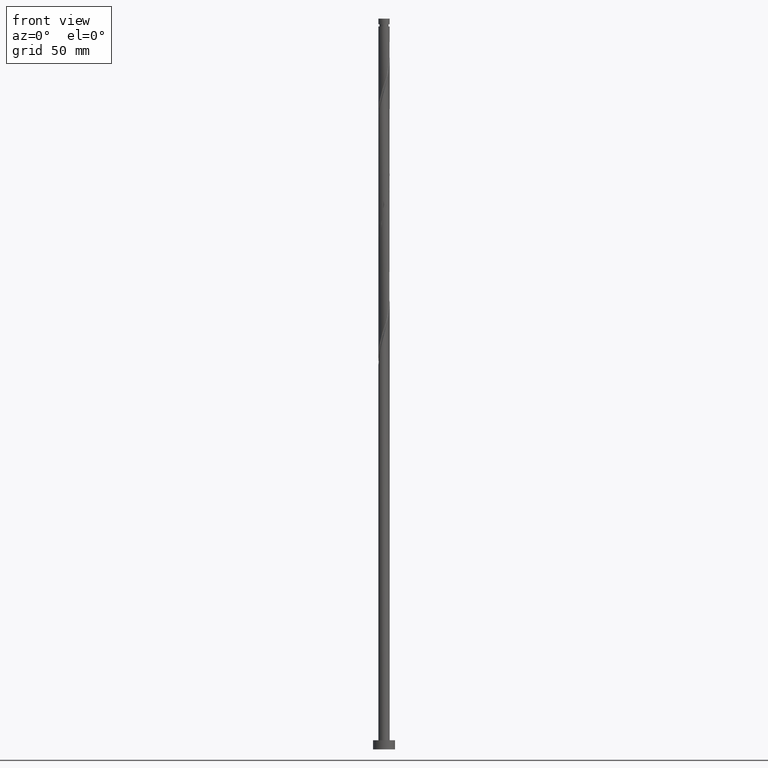
[diagram: clean part render]
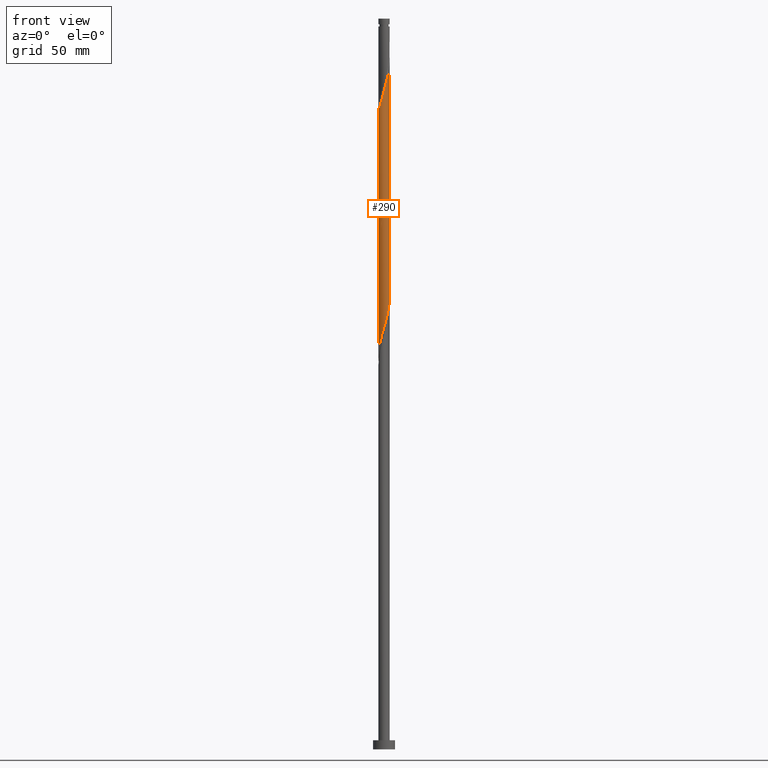
[diagram: same view with one face highlighted and labeled with its STEP entity id]
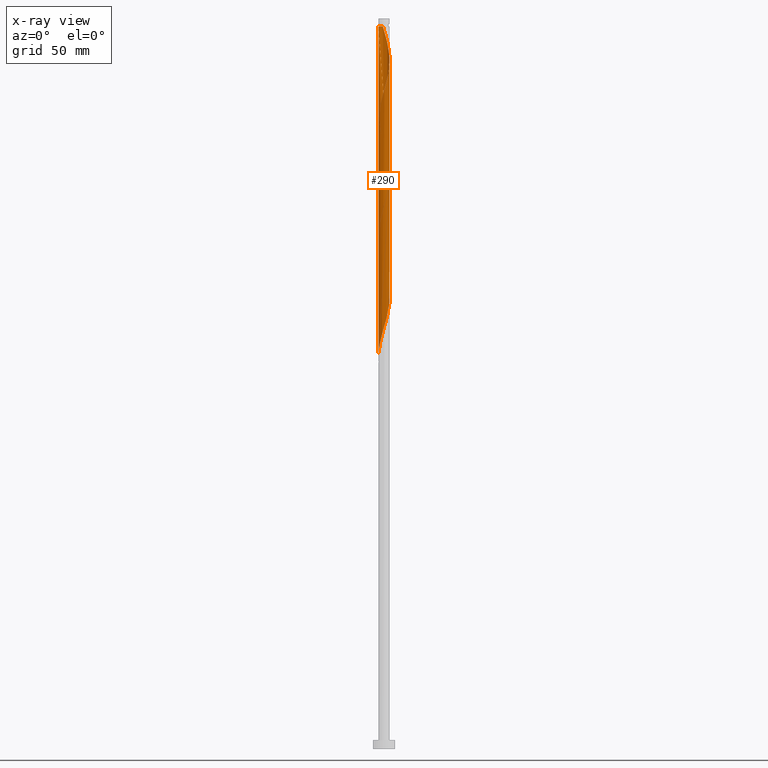
[diagram: x-ray of the same camera — body ghosted, the highlighted face saturated]
A machine part, front view. The second image highlights one B-rep face of the part: STEP entity #290.
The next image is the same camera in x-ray: the body ghosted, the highlighted face saturated — about 0% of this face is hidden behind the body in this view.
In plain terms, the highlighted cylindrical surface (bore or boss wall) has radius 3.1 mm, axis along (-0, -0, -1).
Its self-contained STEP definition (entity closure, byte-faithful):
#2 = CARTESIAN_POINT ( 'NONE',  ( -3.042933274226026441, -0.6758089968403032666, 283.4660513992253073 ) ) ;
#9 = CARTESIAN_POINT ( 'NONE',  ( 1.533895827879467433, -2.713544600852584310, 365.6882736214474221 ) ) ;
#11 = VERTEX_POINT ( 'NONE', #1555 ) ;
#14 = CARTESIAN_POINT ( 'NONE',  ( -2.670455439008896814, -1.574378527631712155, 286.7993847325587922 ) ) ;
#18 = CARTESIAN_POINT ( 'NONE',  ( -0.3540337054636961689, -3.096905043264628343, 359.0216069547807933 ) ) ;
#25 = CARTESIAN_POINT ( 'NONE',  ( -2.939431282200177353, -0.9847556738719593916, 284.5771625103364499 ) ) ;
#28 = CARTESIAN_POINT ( 'NONE',  ( 1.583050644700710441, 2.685165054128872075, 387.9104958436696506 ) ) ;
#35 = CARTESIAN_POINT ( 'NONE',  ( -1.286615314063056070, 2.820393772794575149, 269.0216069547809070 ) ) ;
#41 = EDGE_LOOP ( 'NONE', ( #1274, #458, #556, #756, #1620, #1611, #1861, #1655 ) ) ;
#45 = CARTESIAN_POINT ( 'NONE',  ( -3.054734153313960920, 0.6202902257648849060, 279.0216069547809070 ) ) ;
#54 = CARTESIAN_POINT ( 'NONE',  ( 1.583050644700705334, -2.685165054128869855, 236.7993847325586216 ) ) ;
#64 = CARTESIAN_POINT ( 'NONE',  ( 1.286615314063055626, -2.820393772794575149, 235.6882736214475642 ) ) ;
#65 = EDGE_CURVE ( 'NONE', #935, #898, #1850, .T. ) ;
#69 = CARTESIAN_POINT ( 'NONE',  ( -2.322539071194069660, 2.053244326128039532, 340.1327180658919360 ) ) ;
#78 = CARTESIAN_POINT ( 'NONE',  ( 2.504981587843465363, 1.855054704359807571, 321.2438291770030787 ) ) ;
#80 = CARTESIAN_POINT ( 'NONE',  ( -1.235047352811350141, -2.843353308386714406, 226.7993847325586501 ) ) ;
#90 = CARTESIAN_POINT ( 'NONE',  ( -0.6168922110062284858, 3.038000000000911971, 395.6882736214476495 ) ) ;
#91 = CARTESIAN_POINT ( 'NONE',  ( 0.2975855442689823160, 3.102837984079148459, 330.1327180658918792 ) ) ;
#100 = CARTESIAN_POINT ( 'NONE',  ( -0.3540337054636947256, 3.096905043264625235, 332.3549402881142214 ) ) ;
#145 = CARTESIAN_POINT ( 'NONE',  ( 2.859015293307163752, 1.241850338904814111, 381.2438291770031924 ) ) ;
#151 = CARTESIAN_POINT ( 'NONE',  ( -2.284767878866010626, -2.095193485027602609, 289.0216069547808502 ) ) ;
#156 = CARTESIAN_POINT ( 'NONE',  ( -2.956874723310564779, -0.9310702823348503410, 346.7993847325586785 ) ) ;
#163 = CARTESIAN_POINT ( 'NONE',  ( 2.859015293307157535, -1.241850338904816109, 310.1327180658920497 ) ) ;
#168 = CARTESIAN_POINT ( 'NONE',  ( -1.286615314063058735, -2.820393772794579146, 355.6882736214475358 ) ) ;
#174 = CARTESIAN_POINT ( 'NONE',  ( 2.106734396482793148, -2.297353019080546233, 305.6882736214475926 ) ) ;
#179 = CARTESIAN_POINT ( 'NONE',  ( 2.322539071194075433, 2.053244326128039976, 384.5771625103363931 ) ) ;
#182 = CARTESIAN_POINT ( 'NONE',  ( -1.533895827879466101, -2.713544600852579869, 292.3549402881142214 ) ) ;
#191 = CARTESIAN_POINT ( 'NONE',  ( -0.6168922110061078046, -3.037999999999998479, 295.6882736214474221 ) ) ;
#210 = EDGE_CURVE ( 'NONE', #898, #1034, #387, .T. ) ;
#219 = CARTESIAN_POINT ( 'NONE',  ( -3.099999999999964118, 0.000000000000000000, 395.6882736214475358 ) ) ;
#220 = CARTESIAN_POINT ( 'NONE',  ( -2.939431282200177353, -0.9847556738719593916, 217.9104958436697927 ) ) ;
#223 = CARTESIAN_POINT ( 'NONE',  ( 2.939431282200177353, 0.9847556738719579483, 317.9104958436697075 ) ) ;
#226 = CARTESIAN_POINT ( 'NONE',  ( -0.9361988777432330711, -2.973162015920849832, 227.9104958436697359 ) ) ;
#231 = CARTESIAN_POINT ( 'NONE',  ( -3.100000000000000089, 0.000000000000000000, 400.0000000000000000 ) ) ;
#280 = CARTESIAN_POINT ( 'NONE',  ( -0.02822408059735794644, -3.099871513671891066, 360.1327180658920497 ) ) ;
#286 = VECTOR ( 'NONE', #1885, 1000.000000000000000 ) ;
#290 = ADVANCED_FACE ( 'NONE', ( #1264 ), #1257, .T. ) ;
#291 = CARTESIAN_POINT ( 'NONE',  ( 3.085840312947071951, 0.2959553395205851700, 377.9104958436698212 ) ) ;
#298 = CARTESIAN_POINT ( 'NONE',  ( 2.956874723310559894, -0.9310702823348521173, 311.2438291770030787 ) ) ;
#302 = CARTESIAN_POINT ( 'NONE',  ( -3.085840312947071506, -0.2959553395205868909, 344.5771625103365636 ) ) ;
#306 = CARTESIAN_POINT ( 'NONE',  ( -2.859015293307157535, 1.241850338904815221, 276.7993847325586216 ) ) ;
#310 = CARTESIAN_POINT ( 'NONE',  ( 3.054734153313966694, 0.6202902257648846840, 379.0216069547808502 ) ) ;
#318 = CARTESIAN_POINT ( 'NONE',  ( -1.799224998884011661, -2.524438433273988203, 291.2438291770030787 ) ) ;
#323 = CARTESIAN_POINT ( 'NONE',  ( 2.835929290174332706, -1.293702350903619624, 372.3549402881142214 ) ) ;
#330 = CARTESIAN_POINT ( 'NONE',  ( -2.835929290174329598, -1.293702350903616294, 285.6882736214475926 ) ) ;
#338 = CARTESIAN_POINT ( 'NONE',  ( 2.504981587843465363, 1.855054704359807571, 254.5771625103364499 ) ) ;
#365 = CARTESIAN_POINT ( 'NONE',  ( 2.956874723310559894, -0.9310702823348521173, 244.5771625103364215 ) ) ;
#371 = CARTESIAN_POINT ( 'NONE',  ( -1.533895827879466101, -2.713544600852579869, 225.6882736214475358 ) ) ;
#377 = CARTESIAN_POINT ( 'NONE',  ( -2.698679519606252963, 1.525492986040173138, 342.3549402881142782 ) ) ;
#380 = CARTESIAN_POINT ( 'NONE',  ( 3.054734153313960920, -0.6202902257648852391, 245.6882736214475358 ) ) ;
#387 =( BOUNDED_CURVE ( )  B_SPLINE_CURVE ( 2, ( #1537, #817, #1239, #1688, #388, #1401, #377, #664, #69, #1112, #830, #960, #1260, #1388, #1828, #100, #521, #91, #1245, #1230, #1407, #1822, #1834, #677, #1105, #78, #400, #1095, #223, #544, #1251, #1548, #972 ),
 .UNSPECIFIED., .F., .T. ) 
 B_SPLINE_CURVE_WITH_KNOTS ( ( 3, 2, 2, 2, 2, 2, 2, 2, 2, 2, 2, 2, 2, 2, 2, 2, 3 ),
 ( 0.4295286012773116280, 0.4333333333333333481, 0.4416666666666666519, 0.4500000000000000111, 0.4583333333333333148, 0.4666666666666666741, 0.4749999999999999778, 0.4833333333333333370, 0.4916666666666666408, 0.5000000000000000000, 0.5083333333333333037, 0.5166666666666667185, 0.5250000000000000222, 0.5333333333333333259, 0.5416666666666666297, 0.5500000000000000444, 0.5545286012773117390 ),
 .UNSPECIFIED. ) 
 CURVE ( )  GEOMETRIC_REPRESENTATION_ITEM ( )  RATIONAL_B_SPLINE_CURVE ( ( 0.9066196499552443555, 0.9068171577856571908, 0.9090909090909560231, 0.9041108139712042968, 0.9090909090909560231, 0.9041108139712042968, 0.9090909090909560231, 0.9041108139712042968, 0.9090909090909560231, 0.9041108139712042968, 0.9090909090909560231, 0.9041108139712042968, 0.9090909090909560231, 0.9041108139712042968, 0.9090909090909560231, 0.9041108139712042968, 0.9090909090909560231, 0.9041108139712042968, 0.9090909090909560231, 0.9041108139712042968, 0.9090909090909560231, 0.9041108139712042968, 0.9090909090909560231, 0.9041108139712042968, 0.9090909090909560231, 0.9041108139712042968, 0.9090909090909560231, 0.9041108139712042968, 0.9090909090909560231, 0.9041108139712042968, 0.9090909090909560231, 0.9063845652765030181, 0.9066196499552443555 ) ) 
 REPRESENTATION_ITEM ( '' )  );
#388 = CARTESIAN_POINT ( 'NONE',  ( -2.956874723310560338, 0.9310702823348503410, 344.5771625103363931 ) ) ;
#400 = CARTESIAN_POINT ( 'NONE',  ( 2.670455439008896814, 1.574378527631712155, 320.1327180658919929 ) ) ;
#409 = VECTOR ( 'NONE', #1508, 1000.000000000000000 ) ;
#417 = DIRECTION ( 'NONE',  ( -1.000000000000000000, 0.000000000000000000, 0.000000000000000000 ) ) ;
#432 = CARTESIAN_POINT ( 'NONE',  ( 0.2975855442689814279, -3.102837984079152456, 361.2438291770031924 ) ) ;
#440 = CARTESIAN_POINT ( 'NONE',  ( -2.538343745905346616, 1.809135633175531721, 274.5771625103363931 ) ) ;
#446 = CARTESIAN_POINT ( 'NONE',  ( 0.3540337054636965575, 3.096905043264628343, 392.3549402881142214 ) ) ;
#453 = CARTESIAN_POINT ( 'NONE',  ( -2.956874723310560338, 0.9310702823348503410, 277.9104958436697643 ) ) ;
#456 = CARTESIAN_POINT ( 'NONE',  ( 0.9361988777432320719, -2.973162015920856049, 363.4660513992253073 ) ) ;
#458 = ORIENTED_EDGE ( 'NONE', *, *, #1839, .T. ) ;
#462 = CARTESIAN_POINT ( 'NONE',  ( 3.116946472580171879, 0.02837954672370708586, 247.9104958436697359 ) ) ;
#473 = CARTESIAN_POINT ( 'NONE',  ( 0.3540337054636945036, -3.096905043264625235, 299.0216069547809070 ) ) ;
#485 = CARTESIAN_POINT ( 'NONE',  ( -0.02822408059735607988, 3.099871513671887069, 264.5771625103363931 ) ) ;
#491 = LINE ( 'NONE', #1529, #409 ) ;
#504 = CARTESIAN_POINT ( 'NONE',  ( -3.079939873403099160, -0.3520942717820065848, 215.6882736214475642 ) ) ;
#512 = CARTESIAN_POINT ( 'NONE',  ( -2.504981587843463586, -1.855054704359808682, 221.2438291770030787 ) ) ;
#519 = CARTESIAN_POINT ( 'NONE',  ( 1.844892520591748797, -2.491259036604709376, 237.9104958436697927 ) ) ;
#521 = CARTESIAN_POINT ( 'NONE',  ( -0.02822408059735607988, 3.099871513671887069, 331.2438291770031356 ) ) ;
#524 = CARTESIAN_POINT ( 'NONE',  ( 0.3540337054636945036, -3.096905043264625235, 232.3549402881142214 ) ) ;
#527 = CIRCLE ( 'NONE', #652, 3.099999999999964118 ) ;
#541 = EDGE_CURVE ( 'NONE', #1034, #11, #593, .T. ) ;
#544 = CARTESIAN_POINT ( 'NONE',  ( 3.042933274226026441, 0.6758089968403023784, 316.7993847325585648 ) ) ;
#556 = ORIENTED_EDGE ( 'NONE', *, *, #1438, .F. ) ;
#577 = CARTESIAN_POINT ( 'NONE',  ( -3.100000000000004086, -1.539686788328476282E-15, 343.5628303779260477 ) ) ;
#586 = CARTESIAN_POINT ( 'NONE',  ( -2.859015293307162864, -1.241850338904815665, 347.9104958436695938 ) ) ;
#592 = CARTESIAN_POINT ( 'NONE',  ( 3.054734153313960920, -0.6202902257648852391, 312.3549402881142214 ) ) ;
#593 =( BOUNDED_CURVE ( )  B_SPLINE_CURVE ( 2, ( #1783, #1038, #1459, #592, #298, #163, #769, #1187, #1757, #174, #750, #876, #1624, #1314, #622, #473, #1326, #1166, #191, #1492, #920, #182, #318, #1345, #151, #739, #14, #330, #25, #2, #1057, #1045, #1209, #45, #453, #306, #1198, #440, #1793, #1633, #760, #1027, #35, #604, #781, #892, #485, #1011, #1614, #1336, #1646, #1472, #901, #910, #1176, #338, #615, #1504, #1604, #1354, #1770, #462, #633, #380, #365, #946, #659, #1832, #1514, #1681, #519, #54, #64, #1086, #819, #524, #1392, #1096, #1659, #226, #80, #371, #672, #957, #1216, #512, #938, #1385, #220, #1539, #504, #1802, #1546 ),
 .UNSPECIFIED., .F., .T. ) 
 B_SPLINE_CURVE_WITH_KNOTS ( ( 3, 2, 2, 2, 2, 2, 2, 2, 2, 2, 2, 2, 2, 2, 2, 2, 2, 2, 2, 2, 2, 2, 2, 2, 2, 2, 2, 2, 2, 2, 2, 2, 2, 2, 2, 2, 2, 2, 2, 2, 2, 2, 2, 2, 2, 2, 3 ),
 ( 0.5545286012773117390, 0.5583333333333333481, 0.5666666666666666519, 0.5749999999999999556, 0.5833333333333333703, 0.5916666666666666741, 0.5999999999999999778, 0.6083333333333332815, 0.6166666666666666963, 0.6250000000000000000, 0.6333333333333333037, 0.6416666666666667185, 0.6500000000000000222, 0.6583333333333333259, 0.6666666666666666297, 0.6750000000000000444, 0.6833333333333333481, 0.6916666666666666519, 0.6999999999999999556, 0.7083333333333333703, 0.7166666666666666741, 0.7249999999999999778, 0.7333333333333332815, 0.7416666666666666963, 0.7500000000000000000, 0.7583333333333333037, 0.7666666666666667185, 0.7750000000000000222, 0.7833333333333333259, 0.7916666666666666297, 0.8000000000000000444, 0.8083333333333333481, 0.8166666666666666519, 0.8249999999999999556, 0.8333333333333333703, 0.8416666666666666741, 0.8499999999999999778, 0.8583333333333332815, 0.8666666666666666963, 0.8750000000000000000, 0.8833333333333333037, 0.8916666666666667185, 0.9000000000000000222, 0.9083333333333333259, 0.9166666666666666297, 0.9250000000000000444, 0.9295286012773115170 ),
 .UNSPECIFIED. ) 
 CURVE ( )  GEOMETRIC_REPRESENTATION_ITEM ( )  RATIONAL_B_SPLINE_CURVE ( ( 0.9066196499552443555, 0.9068171577856571908, 0.9090909090909560231, 0.9041108139712042968, 0.9090909090909560231, 0.9041108139712042968, 0.9090909090909560231, 0.9041108139712042968, 0.9090909090909560231, 0.9041108139712042968, 0.9090909090909560231, 0.9041108139712042968, 0.9090909090909560231, 0.9041108139712042968, 0.9090909090909560231, 0.9041108139712042968, 0.9090909090909560231, 0.9041108139712042968, 0.9090909090909560231, 0.9041108139712042968, 0.9090909090909560231, 0.9041108139712042968, 0.9090909090909560231, 0.9041108139712042968, 0.9090909090909560231, 0.9041108139712042968, 0.9090909090909560231, 0.9041108139712042968, 0.9090909090909560231, 0.9041108139712042968, 0.9090909090909560231, 0.9041108139712042968, 0.9090909090909560231, 0.9041108139712042968, 0.9090909090909560231, 0.9041108139712042968, 0.9090909090909560231, 0.9041108139712042968, 0.9090909090909560231, 0.9041108139712042968, 0.9090909090909560231, 0.9041108139712042968, 0.9090909090909560231, 0.9041108139712042968, 0.9090909090909560231, 0.9041108139712042968, 0.9090909090909560231, 0.9041108139712042968, 0.9090909090909560231, 0.9041108139712042968, 0.9090909090909560231, 0.9041108139712042968, 0.9090909090909560231, 0.9041108139712042968, 0.9090909090909560231, 0.9041108139712042968, 0.9090909090909560231, 0.9041108139712042968, 0.9090909090909560231, 0.9041108139712042968, 0.9090909090909560231, 0.9041108139712042968, 0.9090909090909560231, 0.9041108139712042968, 0.9090909090909560231, 0.9041108139712042968, 0.9090909090909560231, 0.9041108139712042968, 0.9090909090909560231, 0.9041108139712042968, 0.9090909090909560231, 0.9041108139712042968, 0.9090909090909560231, 0.9041108139712042968, 0.9090909090909560231, 0.9041108139712042968, 0.9090909090909560231, 0.9041108139712042968, 0.9090909090909560231, 0.9041108139712042968, 0.9090909090909560231, 0.9041108139712042968, 0.9090909090909560231, 0.9041108139712042968, 0.9090909090909560231, 0.9041108139712042968, 0.9090909090909560231, 0.9041108139712042968, 0.9090909090909560231, 0.9041108139712042968, 0.9090909090909560231, 0.9063845652765032401, 0.9066196499552444665 ) ) 
 REPRESENTATION_ITEM ( '' )  );
#596 = CARTESIAN_POINT ( 'NONE',  ( 2.939431282200181794, -0.9847556738719636105, 373.4660513992253073 ) ) ;
#604 = CARTESIAN_POINT ( 'NONE',  ( -0.9901799834254059185, 2.955622491460281331, 267.9104958436697075 ) ) ;
#607 = EDGE_CURVE ( 'NONE', #1753, #11, #875, .T. ) ;
#609 = CARTESIAN_POINT ( 'NONE',  ( 2.504981587843466251, -1.855054704359813122, 370.1327180658919929 ) ) ;
#615 = CARTESIAN_POINT ( 'NONE',  ( 2.670455439008896814, 1.574378527631712155, 253.4660513992252788 ) ) ;
#622 = CARTESIAN_POINT ( 'NONE',  ( 0.6721068444445490453, -3.026263767362453283, 300.1327180658919360 ) ) ;
#633 = CARTESIAN_POINT ( 'NONE',  ( 3.085840312947066622, -0.2959553395205889448, 246.7993847325587069 ) ) ;
#652 = AXIS2_PLACEMENT_3D ( 'NONE', #1554, #1370, #1220 ) ;
#658 = CARTESIAN_POINT ( 'NONE',  ( -3.099999999999999645, -1.449996295804496888E-15, 347.8137168649689670 ) ) ;
#659 = CARTESIAN_POINT ( 'NONE',  ( 2.698679519606252963, -1.525492986040173582, 242.3549402881142498 ) ) ;
#664 = CARTESIAN_POINT ( 'NONE',  ( -2.538343745905346616, 1.809135633175531721, 341.2438291770030219 ) ) ;
#672 = CARTESIAN_POINT ( 'NONE',  ( -1.799224998884011661, -2.524438433273988203, 224.5771625103364499 ) ) ;
#677 = CARTESIAN_POINT ( 'NONE',  ( 2.064554169888556778, 2.335332265695395204, 323.4660513992253073 ) ) ;
#688 = DIRECTION ( 'NONE',  ( -0.000000000000000000, -0.000000000000000000, -1.000000000000000000 ) ) ;
#728 = CARTESIAN_POINT ( 'NONE',  ( 0.000000000000000000, 0.000000000000000000, 400.0000000000000000 ) ) ;
#734 = CARTESIAN_POINT ( 'NONE',  ( 2.538343745905351945, 1.809135633175532831, 383.4660513992253641 ) ) ;
#739 = CARTESIAN_POINT ( 'NONE',  ( -2.504981587843463586, -1.855054704359808682, 287.9104958436696506 ) ) ;
#750 = CARTESIAN_POINT ( 'NONE',  ( 1.844892520591748797, -2.491259036604709376, 304.5771625103365068 ) ) ;
#754 = CARTESIAN_POINT ( 'NONE',  ( -3.054734153313966694, -0.6202902257648850171, 345.6882736214475358 ) ) ;
#756 = ORIENTED_EDGE ( 'NONE', *, *, #607, .T. ) ;
#760 = CARTESIAN_POINT ( 'NONE',  ( -1.844892520591749463, 2.491259036604708932, 271.2438291770031356 ) ) ;
#765 = CARTESIAN_POINT ( 'NONE',  ( -3.100000000000004974, -0.1483163977889086771, 344.0713789034901424 ) ) ;
#769 = CARTESIAN_POINT ( 'NONE',  ( 2.698679519606252963, -1.525492986040173582, 309.0216069547807933 ) ) ;
#781 = CARTESIAN_POINT ( 'NONE',  ( -0.6721068444445500445, 3.026263767362452839, 266.7993847325586785 ) ) ;
#817 = CARTESIAN_POINT ( 'NONE',  ( -3.099999999999999645, 0.1483163977889325746, 347.3051683394050428 ) ) ;
#819 = CARTESIAN_POINT ( 'NONE',  ( 0.6721068444445490453, -3.026263767362453283, 233.4660513992253357 ) ) ;
#829 = CARTESIAN_POINT ( 'NONE',  ( -0.6168922110062284858, 3.038000000000911971, 395.6882736214476495 ) ) ;
#830 = CARTESIAN_POINT ( 'NONE',  ( -1.844892520591749463, 2.491259036604708932, 337.9104958436697643 ) ) ;
#859 = CARTESIAN_POINT ( 'NONE',  ( 1.235047352811349697, -2.843353308386719291, 364.5771625103365068 ) ) ;
#875 = LINE ( 'NONE', #1642, #286 ) ;
#876 = CARTESIAN_POINT ( 'NONE',  ( 1.583050644700705334, -2.685165054128869855, 303.4660513992253641 ) ) ;
#884 = CARTESIAN_POINT ( 'NONE',  ( -2.106734396482798033, -2.297353019080548453, 352.3549402881143919 ) ) ;
#890 =( BOUNDED_CURVE ( )  B_SPLINE_CURVE ( 2, ( #577, #765, #302, #754, #156, #586, #1736, #1041, #1627, #884, #1296, #1618, #168, #1319, #1144, #18, #280, #432, #1477, #456, #859, #9, #1330, #1597, #1609, #609, #1004, #323, #596, #1774, #1440, #1487, #291, #310, #1453, #145, #1308, #734, #179, #1466, #1341, #28, #1892, #1159, #1751, #446, #1020, #1104, #90 ),
 .UNSPECIFIED., .F., .T. ) 
 B_SPLINE_CURVE_WITH_KNOTS ( ( 3, 2, 2, 2, 2, 2, 2, 2, 2, 2, 2, 2, 2, 2, 2, 2, 2, 2, 2, 2, 2, 2, 2, 2, 3 ),
 ( 0.5545286012773110729, 0.5583333333333333481, 0.5666666666666666519, 0.5749999999999999556, 0.5833333333333332593, 0.5916666666666666741, 0.6000000000000000888, 0.6083333333333335036, 0.6166666666666668073, 0.6250000000000001110, 0.6333333333333334147, 0.6416666666666667185, 0.6500000000000001332, 0.6583333333333334370, 0.6666666666666668517, 0.6750000000000001554, 0.6833333333333334592, 0.6916666666666668739, 0.7000000000000001776, 0.7083333333333334814, 0.7166666666666668961, 0.7250000000000001998, 0.7333333333333336146, 0.7416666666666669183, 0.7500000000000002220 ),
 .UNSPECIFIED. ) 
 CURVE ( )  GEOMETRIC_REPRESENTATION_ITEM ( )  RATIONAL_B_SPLINE_CURVE ( ( 0.9066196499552503507, 0.9068171577856628529, 0.9090909090909620183, 0.9041108139712102920, 0.9090909090909620183, 0.9041108139712102920, 0.9090909090909620183, 0.9041108139712102920, 0.9090909090909620183, 0.9041108139712102920, 0.9090909090909620183, 0.9041108139712102920, 0.9090909090909620183, 0.9041108139712102920, 0.9090909090909620183, 0.9041108139712102920, 0.9090909090909620183, 0.9041108139712102920, 0.9090909090909620183, 0.9041108139712102920, 0.9090909090909620183, 0.9041108139712102920, 0.9090909090909620183, 0.9041108139712102920, 0.9090909090909620183, 0.9041108139712102920, 0.9090909090909620183, 0.9041108139712102920, 0.9090909090909620183, 0.9041108139712102920, 0.9090909090909620183, 0.9041108139712102920, 0.9090909090909620183, 0.9041108139712102920, 0.9090909090909620183, 0.9041108139712102920, 0.9090909090909620183, 0.9041108139712102920, 0.9090909090909620183, 0.9041108139712102920, 0.9090909090909620183, 0.9041108139712102920, 0.9090909090909620183, 0.9041108139712102920, 0.9090909090909620183, 0.9041108139712102920, 0.9090909090909620183, 0.9041108139712101810, 0.9090909090909621293 ) ) 
 REPRESENTATION_ITEM ( '' )  );
#892 = CARTESIAN_POINT ( 'NONE',  ( -0.3540337054636947256, 3.096905043264625235, 265.6882736214475358 ) ) ;
#898 = VERTEX_POINT ( 'NONE', #658 ) ;
#901 = CARTESIAN_POINT ( 'NONE',  ( 1.799224998884012772, 2.524438433273987314, 257.9104958436698212 ) ) ;
#910 = CARTESIAN_POINT ( 'NONE',  ( 2.064554169888556778, 2.335332265695395204, 256.7993847325585648 ) ) ;
#920 = CARTESIAN_POINT ( 'NONE',  ( -1.235047352811350141, -2.843353308386714406, 293.4660513992252504 ) ) ;
#935 = VERTEX_POINT ( 'NONE', #219 ) ;
#938 = CARTESIAN_POINT ( 'NONE',  ( -2.670455439008896814, -1.574378527631712155, 220.1327180658920213 ) ) ;
#946 = CARTESIAN_POINT ( 'NONE',  ( 2.859015293307157535, -1.241850338904816109, 243.4660513992253073 ) ) ;
#957 = CARTESIAN_POINT ( 'NONE',  ( -2.064554169888556334, -2.335332265695395648, 223.4660513992252788 ) ) ;
#960 = CARTESIAN_POINT ( 'NONE',  ( -1.583050644700705778, 2.685165054128869855, 336.7993847325586785 ) ) ;
#961 = CARTESIAN_POINT ( 'NONE',  ( 3.100000000000000089, 3.796405077356793932E-16, 395.6882736214476495 ) ) ;
#972 = CARTESIAN_POINT ( 'NONE',  ( 3.100000000000000089, 2.107726574313753983E-15, 314.4803835316355958 ) ) ;
#1004 = CARTESIAN_POINT ( 'NONE',  ( 2.670455439008899035, -1.574378527631716596, 371.2438291770031356 ) ) ;
#1011 = CARTESIAN_POINT ( 'NONE',  ( 0.2975855442689823160, 3.102837984079148459, 263.4660513992253073 ) ) ;
#1020 = CARTESIAN_POINT ( 'NONE',  ( 0.02822408059735836972, 3.099871513671891066, 393.4660513992253073 ) ) ;
#1027 = CARTESIAN_POINT ( 'NONE',  ( -1.583050644700705778, 2.685165054128869855, 270.1327180658920497 ) ) ;
#1034 = VERTEX_POINT ( 'NONE', #1373 ) ;
#1038 = CARTESIAN_POINT ( 'NONE',  ( 3.099999999999999645, -0.1483163977889372931, 313.9718350060716716 ) ) ;
#1041 = CARTESIAN_POINT ( 'NONE',  ( -2.538343745905351501, -1.809135633175533497, 350.1327180658918792 ) ) ;
#1045 = CARTESIAN_POINT ( 'NONE',  ( -3.116946472580171879, -0.02837954672370898712, 281.2438291770029650 ) ) ;
#1057 = CARTESIAN_POINT ( 'NONE',  ( -3.079939873403099160, -0.3520942717820065848, 282.3549402881142782 ) ) ;
#1086 = CARTESIAN_POINT ( 'NONE',  ( 0.9901799834254050303, -2.955622491460281331, 234.5771625103364215 ) ) ;
#1095 = CARTESIAN_POINT ( 'NONE',  ( 2.835929290174329598, 1.293702350903615628, 319.0216069547808502 ) ) ;
#1096 = CARTESIAN_POINT ( 'NONE',  ( -0.2975855442689836483, -3.102837984079148459, 230.1327180658919644 ) ) ;
#1104 = CARTESIAN_POINT ( 'NONE',  ( -0.2975855442689884223, 3.102837984079152456, 394.5771625103363363 ) ) ;
#1105 = CARTESIAN_POINT ( 'NONE',  ( 2.284767878866010626, 2.095193485027602165, 322.3549402881141646 ) ) ;
#1112 = CARTESIAN_POINT ( 'NONE',  ( -2.106734396482794036, 2.297353019080546233, 339.0216069547809070 ) ) ;
#1144 = CARTESIAN_POINT ( 'NONE',  ( -0.6721068444445524870, -3.026263767362457280, 357.9104958436698212 ) ) ;
#1150 = DIRECTION ( 'NONE',  ( -0.000000000000000000, -0.000000000000000000, -1.000000000000000000 ) ) ;
#1159 = CARTESIAN_POINT ( 'NONE',  ( 0.9901799834254095822, 2.955622491460285328, 390.1327180658920497 ) ) ;
#1166 = CARTESIAN_POINT ( 'NONE',  ( -0.2975855442689836483, -3.102837984079148459, 296.7993847325586216 ) ) ;
#1176 = CARTESIAN_POINT ( 'NONE',  ( 2.284767878866010626, 2.095193485027602165, 255.6882736214475358 ) ) ;
#1187 = CARTESIAN_POINT ( 'NONE',  ( 2.538343745905345727, -1.809135633175533719, 307.9104958436695938 ) ) ;
#1198 = CARTESIAN_POINT ( 'NONE',  ( -2.698679519606252963, 1.525492986040173138, 275.6882736214475358 ) ) ;
#1209 = CARTESIAN_POINT ( 'NONE',  ( -3.085840312947066622, 0.2959553395205879456, 280.1327180658919929 ) ) ;
#1216 = CARTESIAN_POINT ( 'NONE',  ( -2.284767878866010626, -2.095193485027602609, 222.3549402881142214 ) ) ;
#1220 = DIRECTION ( 'NONE',  ( -1.000000000000000000, 0.000000000000000000, 0.000000000000000000 ) ) ;
#1230 = CARTESIAN_POINT ( 'NONE',  ( 0.9361988777432349584, 2.973162015920849388, 327.9104958436697643 ) ) ;
#1239 = CARTESIAN_POINT ( 'NONE',  ( -3.085840312947066622, 0.2959553395205879456, 346.7993847325587353 ) ) ;
#1245 = CARTESIAN_POINT ( 'NONE',  ( 0.6168922110061080266, 3.037999999999998479, 329.0216069547809070 ) ) ;
#1251 = CARTESIAN_POINT ( 'NONE',  ( 3.079939873403099160, 0.3520942717820060852, 315.6882736214475358 ) ) ;
#1257 = CYLINDRICAL_SURFACE ( 'NONE', #1747, 3.100000000000000089 ) ;
#1260 = CARTESIAN_POINT ( 'NONE',  ( -1.286615314063056070, 2.820393772794575149, 335.6882736214474789 ) ) ;
#1264 = FACE_OUTER_BOUND ( 'NONE', #41, .T. ) ;
#1274 = ORIENTED_EDGE ( 'NONE', *, *, #65, .F. ) ;
#1296 = CARTESIAN_POINT ( 'NONE',  ( -1.844892520591753904, -2.491259036604711152, 353.4660513992252504 ) ) ;
#1298 = VERTEX_POINT ( 'NONE', #961 ) ;
#1308 = CARTESIAN_POINT ( 'NONE',  ( 2.698679519606256960, 1.525492986040174470, 382.3549402881143351 ) ) ;
#1314 = CARTESIAN_POINT ( 'NONE',  ( 0.9901799834254050303, -2.955622491460281331, 301.2438291770030219 ) ) ;
#1319 = CARTESIAN_POINT ( 'NONE',  ( -0.9901799834254091381, -2.955622491460285772, 356.7993847325587353 ) ) ;
#1326 = CARTESIAN_POINT ( 'NONE',  ( 0.02822408059735533048, -3.099871513671887069, 297.9104958436698212 ) ) ;
#1330 = CARTESIAN_POINT ( 'NONE',  ( 1.799224998884012550, -2.524438433273993532, 366.7993847325586216 ) ) ;
#1336 = CARTESIAN_POINT ( 'NONE',  ( 0.9361988777432349584, 2.973162015920849388, 261.2438291770030787 ) ) ;
#1341 = CARTESIAN_POINT ( 'NONE',  ( 1.844892520591754348, 2.491259036604711152, 386.7993847325586216 ) ) ;
#1345 = CARTESIAN_POINT ( 'NONE',  ( -2.064554169888556334, -2.335332265695395648, 290.1327180658920497 ) ) ;
#1354 = CARTESIAN_POINT ( 'NONE',  ( 3.042933274226026441, 0.6758089968403023784, 250.1327180658919360 ) ) ;
#1370 = DIRECTION ( 'NONE',  ( -0.000000000000000000, -0.000000000000000000, -1.000000000000000000 ) ) ;
#1373 = CARTESIAN_POINT ( 'NONE',  ( 3.100000000000000089, 2.107726574313753983E-15, 314.4803835316355958 ) ) ;
#1385 = CARTESIAN_POINT ( 'NONE',  ( -2.835929290174329598, -1.293702350903616294, 219.0216069547808786 ) ) ;
#1388 = CARTESIAN_POINT ( 'NONE',  ( -0.9901799834254059185, 2.955622491460281331, 334.5771625103363931 ) ) ;
#1392 = CARTESIAN_POINT ( 'NONE',  ( 0.02822408059735533048, -3.099871513671887069, 231.2438291770030787 ) ) ;
#1401 = CARTESIAN_POINT ( 'NONE',  ( -2.859015293307157535, 1.241850338904815221, 343.4660513992253641 ) ) ;
#1407 = CARTESIAN_POINT ( 'NONE',  ( 1.235047352811350585, 2.843353308386714406, 326.7993847325586216 ) ) ;
#1438 = EDGE_CURVE ( 'NONE', #1753, #1727, #890, .T. ) ;
#1440 = CARTESIAN_POINT ( 'NONE',  ( 3.079939873403103601, -0.3520942717820081946, 375.6882736214475926 ) ) ;
#1453 = CARTESIAN_POINT ( 'NONE',  ( 2.956874723310565223, 0.9310702823348494528, 380.1327180658920497 ) ) ;
#1459 = CARTESIAN_POINT ( 'NONE',  ( 3.085840312947066622, -0.2959553395205889448, 313.4660513992254209 ) ) ;
#1466 = CARTESIAN_POINT ( 'NONE',  ( 2.106734396482798477, 2.297353019080548453, 385.6882736214475358 ) ) ;
#1472 = CARTESIAN_POINT ( 'NONE',  ( 1.533895827879466989, 2.713544600852579869, 259.0216069547809070 ) ) ;
#1477 = CARTESIAN_POINT ( 'NONE',  ( 0.6168922110061073605, -3.038000000000004253, 362.3549402881142782 ) ) ;
#1487 = CARTESIAN_POINT ( 'NONE',  ( 3.116946472580176764, -0.02837954672371159615, 376.7993847325586785 ) ) ;
#1492 = CARTESIAN_POINT ( 'NONE',  ( -0.9361988777432330711, -2.973162015920849832, 294.5771625103363931 ) ) ;
#1504 = CARTESIAN_POINT ( 'NONE',  ( 2.835929290174329598, 1.293702350903615628, 252.3549402881141646 ) ) ;
#1508 = DIRECTION ( 'NONE',  ( -0.000000000000000000, -0.000000000000000000, -1.000000000000000000 ) ) ;
#1509 = EDGE_CURVE ( 'NONE', #1298, #1034, #491, .T. ) ;
#1514 = CARTESIAN_POINT ( 'NONE',  ( 2.322539071194069216, -2.053244326128039532, 240.1327180658920213 ) ) ;
#1529 = CARTESIAN_POINT ( 'NONE',  ( 3.100000000000000089, 3.796405077356793932E-16, 400.0000000000000000 ) ) ;
#1537 = CARTESIAN_POINT ( 'NONE',  ( -3.099999999999999645, -1.449996295804496888E-15, 347.8137168649689670 ) ) ;
#1539 = CARTESIAN_POINT ( 'NONE',  ( -3.042933274226026441, -0.6758089968403032666, 216.7993847325586501 ) ) ;
#1546 = CARTESIAN_POINT ( 'NONE',  ( -3.100000000000000089, -3.453083962173596742E-15, 214.4803835316356810 ) ) ;
#1548 = CARTESIAN_POINT ( 'NONE',  ( 3.100000000000000977, 0.1766185860839277200, 315.0859748410200609 ) ) ;
#1554 = CARTESIAN_POINT ( 'NONE',  ( 0.000000000000000000, 0.000000000000000000, 395.6882736214475358 ) ) ;
#1555 = CARTESIAN_POINT ( 'NONE',  ( -3.100000000000000089, -3.453083962173596742E-15, 214.4803835316356810 ) ) ;
#1597 = CARTESIAN_POINT ( 'NONE',  ( 2.064554169888558555, -2.335332265695401421, 367.9104958436698212 ) ) ;
#1604 = CARTESIAN_POINT ( 'NONE',  ( 2.939431282200177353, 0.9847556738719579483, 251.2438291770031071 ) ) ;
#1609 = CARTESIAN_POINT ( 'NONE',  ( 2.284767878866011959, -2.095193485027607050, 369.0216069547807933 ) ) ;
#1611 = ORIENTED_EDGE ( 'NONE', *, *, #1509, .F. ) ;
#1614 = CARTESIAN_POINT ( 'NONE',  ( 0.6168922110061080266, 3.037999999999998479, 262.3549402881142214 ) ) ;
#1618 = CARTESIAN_POINT ( 'NONE',  ( -1.583050644700709109, -2.685165054128872963, 354.5771625103363931 ) ) ;
#1620 = ORIENTED_EDGE ( 'NONE', *, *, #541, .F. ) ;
#1624 = CARTESIAN_POINT ( 'NONE',  ( 1.286615314063055626, -2.820393772794575149, 302.3549402881143351 ) ) ;
#1627 = CARTESIAN_POINT ( 'NONE',  ( -2.322539071194074545, -2.053244326128040864, 351.2438291770031356 ) ) ;
#1633 = CARTESIAN_POINT ( 'NONE',  ( -2.106734396482794036, 2.297353019080546233, 272.3549402881142214 ) ) ;
#1639 = CARTESIAN_POINT ( 'NONE',  ( -3.100000000000004086, -1.539686788328476282E-15, 343.5628303779260477 ) ) ;
#1642 = CARTESIAN_POINT ( 'NONE',  ( -3.100000000000000089, 0.000000000000000000, 400.0000000000000000 ) ) ;
#1646 = CARTESIAN_POINT ( 'NONE',  ( 1.235047352811350585, 2.843353308386714406, 260.1327180658919929 ) ) ;
#1655 = ORIENTED_EDGE ( 'NONE', *, *, #210, .F. ) ;
#1659 = CARTESIAN_POINT ( 'NONE',  ( -0.6168922110061078046, -3.037999999999998479, 229.0216069547809354 ) ) ;
#1681 = CARTESIAN_POINT ( 'NONE',  ( 2.106734396482793148, -2.297353019080546233, 239.0216069547808502 ) ) ;
#1688 = CARTESIAN_POINT ( 'NONE',  ( -3.054734153313960920, 0.6202902257648849060, 345.6882736214475926 ) ) ;
#1727 = VERTEX_POINT ( 'NONE', #829 ) ;
#1736 = CARTESIAN_POINT ( 'NONE',  ( -2.698679519606256960, -1.525492986040174692, 349.0216069547807933 ) ) ;
#1747 = AXIS2_PLACEMENT_3D ( 'NONE', #728, #1150, #417 ) ;
#1751 = CARTESIAN_POINT ( 'NONE',  ( 0.6721068444445544854, 3.026263767362457280, 391.2438291770030787 ) ) ;
#1753 = VERTEX_POINT ( 'NONE', #1639 ) ;
#1757 = CARTESIAN_POINT ( 'NONE',  ( 2.322539071194069216, -2.053244326128039532, 306.7993847325586785 ) ) ;
#1770 = CARTESIAN_POINT ( 'NONE',  ( 3.079939873403099160, 0.3520942717820060852, 249.0216069547808502 ) ) ;
#1774 = CARTESIAN_POINT ( 'NONE',  ( 3.042933274226029550, -0.6758089968403078185, 374.5771625103363931 ) ) ;
#1783 = CARTESIAN_POINT ( 'NONE',  ( 3.100000000000000089, 2.107726574313753983E-15, 314.4803835316355958 ) ) ;
#1793 = CARTESIAN_POINT ( 'NONE',  ( -2.322539071194069660, 2.053244326128039532, 273.4660513992253073 ) ) ;
#1802 = CARTESIAN_POINT ( 'NONE',  ( -3.100000000000000089, -0.1766185860839376010, 215.0859748410202315 ) ) ;
#1822 = CARTESIAN_POINT ( 'NONE',  ( 1.533895827879466989, 2.713544600852579869, 325.6882736214475358 ) ) ;
#1828 = CARTESIAN_POINT ( 'NONE',  ( -0.6721068444445500445, 3.026263767362452839, 333.4660513992253641 ) ) ;
#1832 = CARTESIAN_POINT ( 'NONE',  ( 2.538343745905345727, -1.809135633175533719, 241.2438291770031071 ) ) ;
#1834 = CARTESIAN_POINT ( 'NONE',  ( 1.799224998884012772, 2.524438433273987314, 324.5771625103365068 ) ) ;
#1839 = EDGE_CURVE ( 'NONE', #935, #1727, #527, .T. ) ;
#1843 = VECTOR ( 'NONE', #688, 1000.000000000000000 ) ;
#1850 = LINE ( 'NONE', #231, #1843 ) ;
#1861 = ORIENTED_EDGE ( 'NONE', *, *, #1509, .T. ) ;
#1885 = DIRECTION ( 'NONE',  ( -0.000000000000000000, -0.000000000000000000, -1.000000000000000000 ) ) ;
#1892 = CARTESIAN_POINT ( 'NONE',  ( 1.286615314063059179, 2.820393772794579590, 389.0216069547809639 ) ) ;